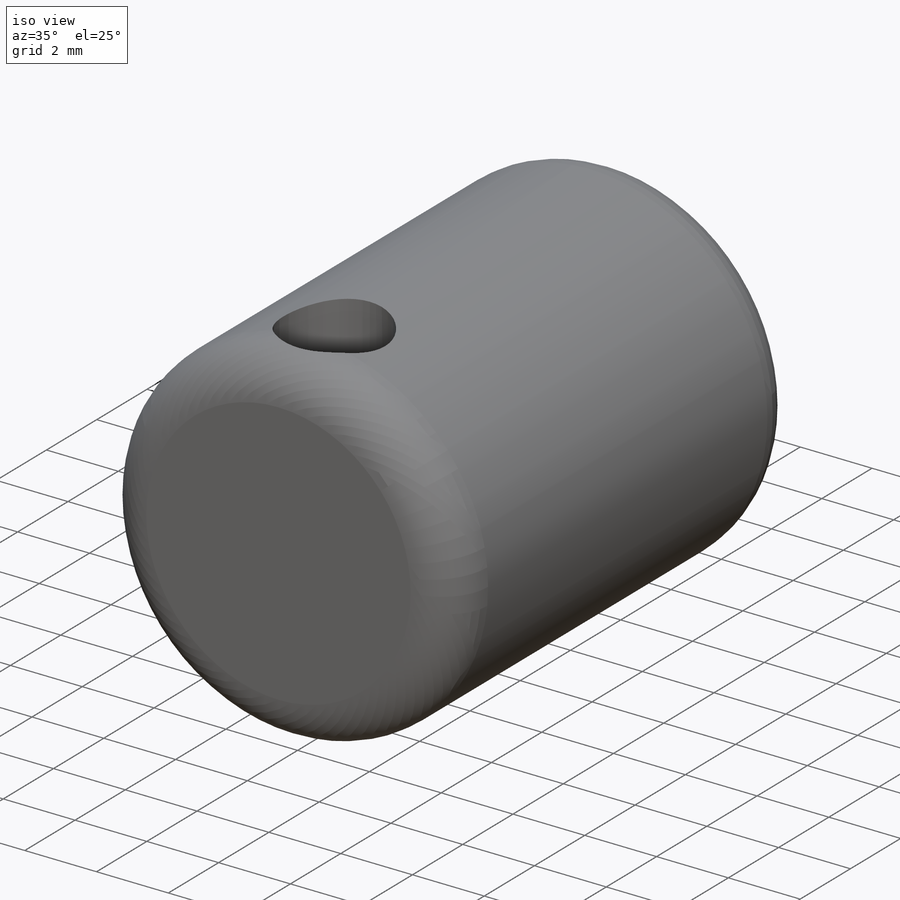
[diagram: iso view]
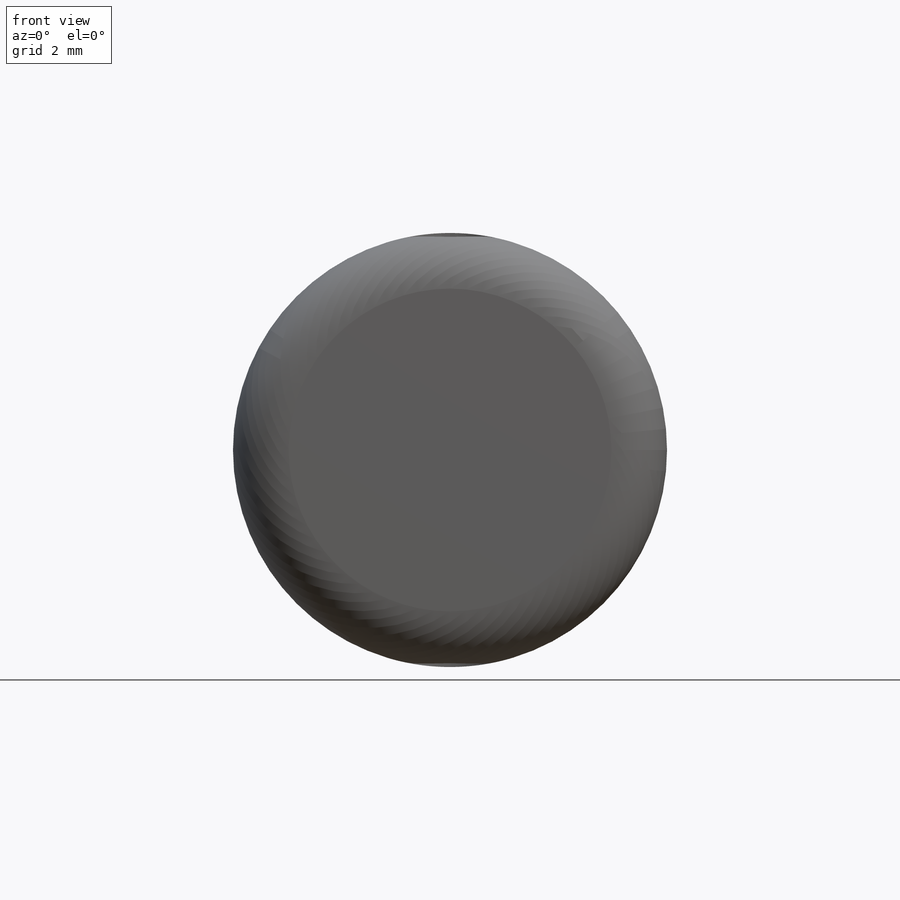
[diagram: front view]
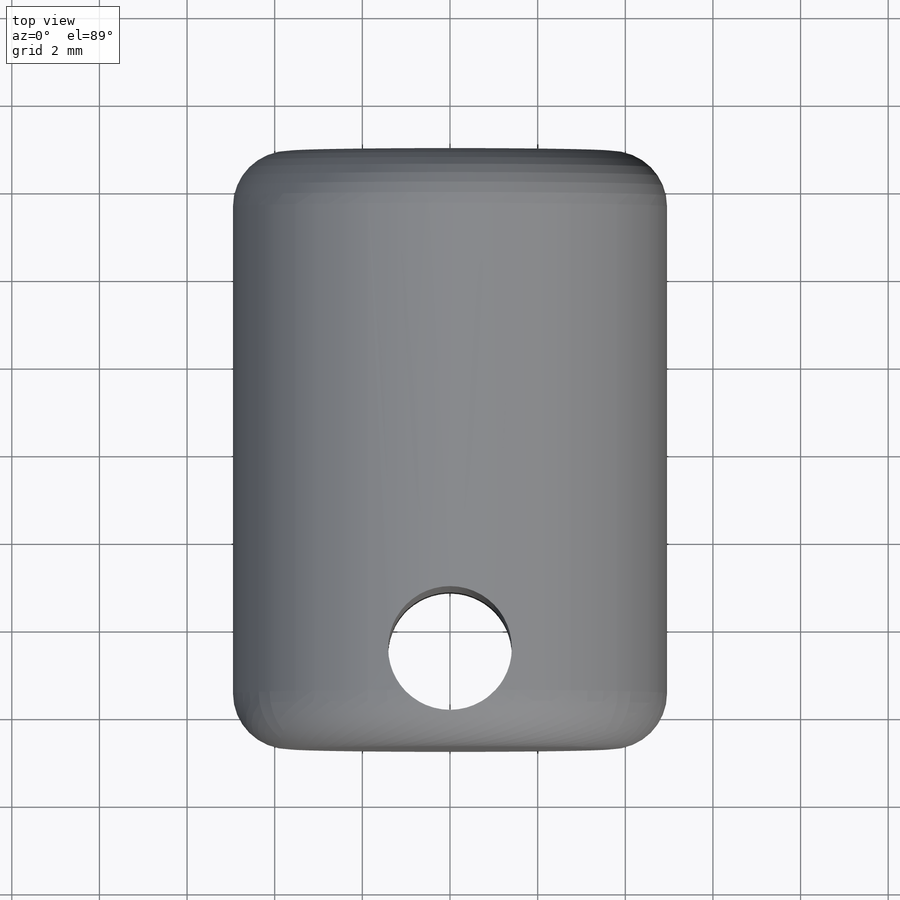
[diagram: top view]
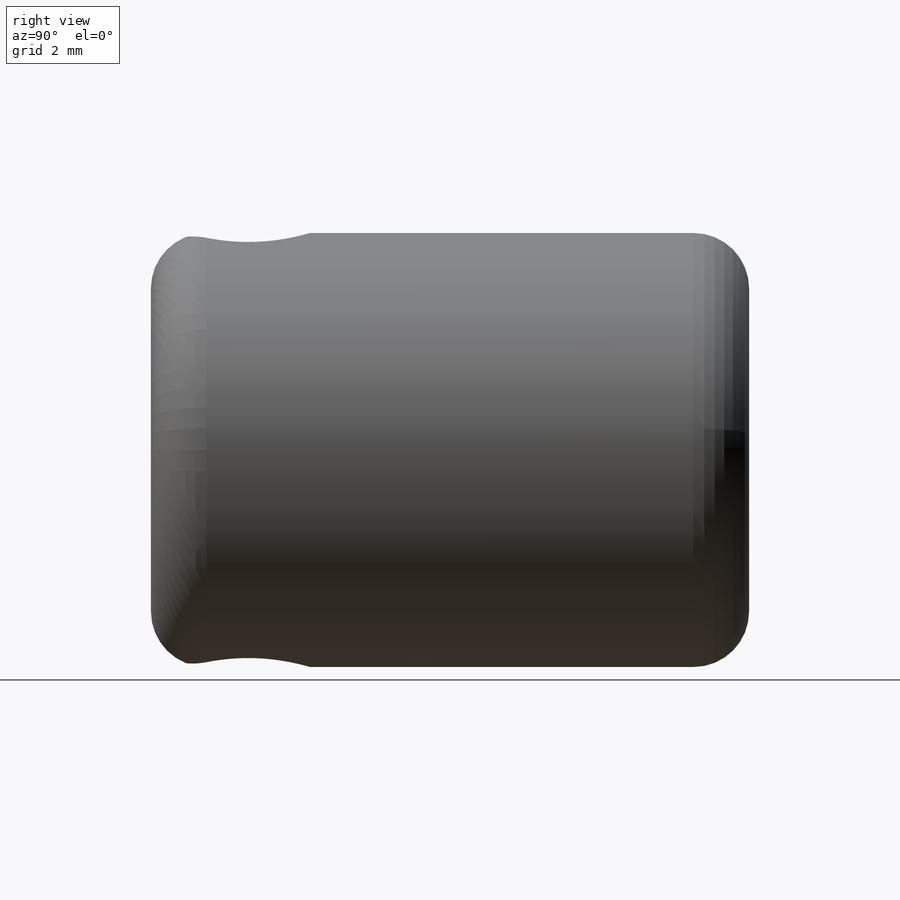
[diagram: right view]
SOLIDWORKS PART (.sldprt)
format: sldprt  version: not decoded by parser v0  size: 274,432 bytes
history: native  units: mm
features: sketch x5, extrude x2, fillet x2, material x1, plane x1, hole x1, cut_extrude x1 (+13 scaffold rows collapsed)
feature tree (26):
  scaffold x13  (default folders/planes/origin — collapsed)
  material  "Material <not specified>"
  sketch  "Sketch2"  dims[c1.D3=4.1783mm c1.D1=9.0678mm c2.D3=4.826mm c2.D4=2.54mm c2.D1=2.54mm c2.D2=0.0mm c3.D3=~0.09525mm]
  extrude  "Boss-Extrude1"  Depth=8.89mm
  extrude  "Boss-Extrude2"  [1 undecoded]
  sketch  "Sketch2<2>"  dims[D1=4.7625mm]
  fillet  "Fillet1"  Radius=2.54mm
  plane  "Plane1"
  hole  "#46 (0.081) Diameter Hole2"  Diameter=2.0574mm Depth=9.0678mm
  sketch  "Sketch7"  dims[D1=1.27mm]
  sketch  "Sketch6"  dims[hole-wizard template sketch: 59 standard entries collapsed; hole parameters kept: c18.Thru Hole Dia.=2.0574mm c18.Thru Hole Depth=9.0678mm]
  sketch  "Sketch8"  dims[D1=~2.822222mm]
  cut_extrude  "Cut-Extrude1"  [1 undecoded]
  fillet  "Fillet2"  Radius=1.27mm
decode coverage: 9 of 11 modeling features carry decoded parameters
note: ~ marks probable driven/reference dimensions
note: 2 parameter values undecoded
note: suppression state not decoded; provenance and decode notes live in map.json
